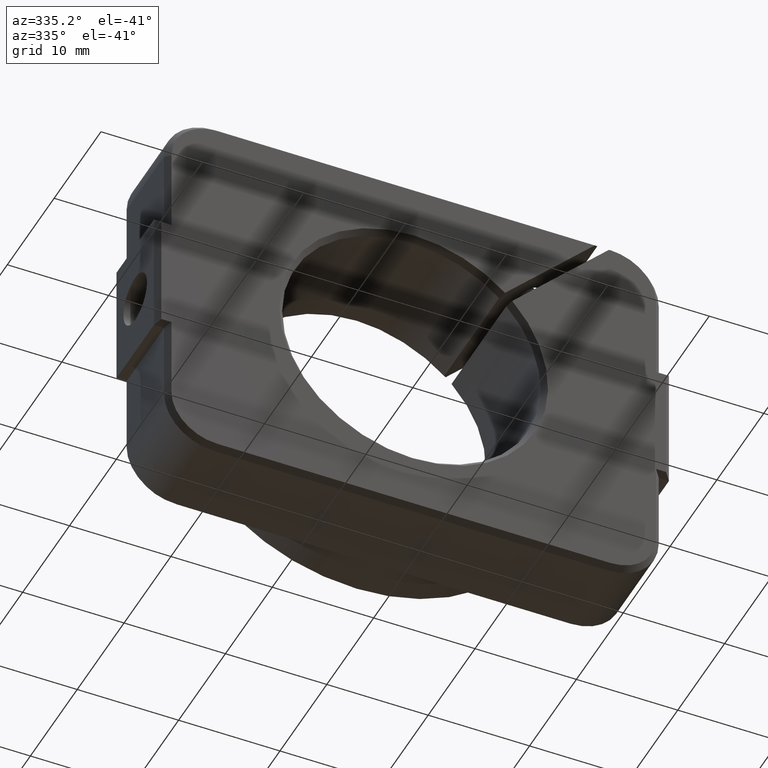
[diagram: clean part render]
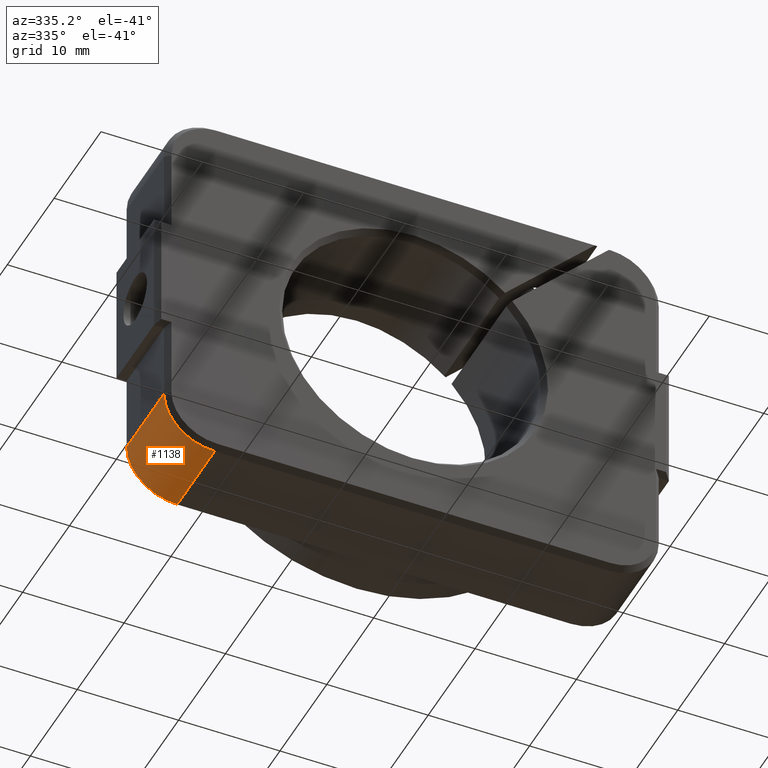
[diagram: same view with one face highlighted and labeled with its STEP entity id]
A machine part, auxiliary view. The second image highlights one B-rep face of the part: STEP entity #1138.
In plain terms, the highlighted cylindrical surface (partial cylindrical patch) has radius 5 mm, axis along (-0, -1, -0).
Its self-contained STEP definition (entity closure, byte-faithful):
#77 = LINE ( 'NONE', #554, #2280 ) ;
#210 = AXIS2_PLACEMENT_3D ( 'NONE', #2046, #751, #739 ) ;
#240 = CYLINDRICAL_SURFACE ( 'NONE', #1791, 5.000000000000004400 ) ;
#356 = CIRCLE ( 'NONE', #2605, 5.000000000000004400 ) ;
#521 = DIRECTION ( 'NONE',  ( 0.0000000000000000000, -1.000000000000000000, 0.0000000000000000000 ) ) ;
#536 = VERTEX_POINT ( 'NONE', #2463 ) ;
#554 = CARTESIAN_POINT ( 'NONE',  ( -21.98378581280264000, 8.546217940882606000, 31.75000000000001400 ) ) ;
#610 = EDGE_CURVE ( 'NONE', #2768, #1998, #77, .T. ) ;
#659 = FACE_OUTER_BOUND ( 'NONE', #2517, .T. ) ;
#671 = EDGE_CURVE ( 'NONE', #692, #536, #2808, .T. ) ;
#683 = EDGE_CURVE ( 'NONE', #692, #2768, #356, .T. ) ;
#692 = VERTEX_POINT ( 'NONE', #2697 ) ;
#739 = DIRECTION ( 'NONE',  ( 0.0000000000000000000, 0.0000000000000000000, 1.000000000000000000 ) ) ;
#751 = DIRECTION ( 'NONE',  ( -0.0000000000000000000, 1.000000000000000000, -0.0000000000000000000 ) ) ;
#862 = CARTESIAN_POINT ( 'NONE',  ( -21.98378581280264000, 8.546217940882606000, 36.75000000000001400 ) ) ;
#930 = DIRECTION ( 'NONE',  ( 0.0000000000000000000, 0.0000000000000000000, 1.000000000000000000 ) ) ;
#1036 = CARTESIAN_POINT ( 'NONE',  ( -21.98378581280264000, -3.653782059117393700, 31.75000000000001400 ) ) ;
#1106 = DIRECTION ( 'NONE',  ( 0.0000000000000000000, 0.0000000000000000000, -1.000000000000000000 ) ) ;
#1138 = ADVANCED_FACE ( 'NONE', ( #659 ), #240, .T. ) ;
#1743 = DIRECTION ( 'NONE',  ( -0.0000000000000000000, -1.000000000000000000, -0.0000000000000000000 ) ) ;
#1791 = AXIS2_PLACEMENT_3D ( 'NONE', #862, #1743, #1106 ) ;
#1808 = CARTESIAN_POINT ( 'NONE',  ( -26.98378581280263700, 8.546217940882606000, 36.75000000000001400 ) ) ;
#1832 = DIRECTION ( 'NONE',  ( -0.0000000000000000000, -1.000000000000000000, -0.0000000000000000000 ) ) ;
#1877 = ORIENTED_EDGE ( 'NONE', *, *, #683, .T. ) ;
#1927 = ORIENTED_EDGE ( 'NONE', *, *, #671, .F. ) ;
#1998 = VERTEX_POINT ( 'NONE', #1036 ) ;
#2046 = CARTESIAN_POINT ( 'NONE',  ( -21.98378581280264000, -3.653782059117393700, 36.75000000000001400 ) ) ;
#2102 = DIRECTION ( 'NONE',  ( -0.0000000000000000000, -1.000000000000000000, -0.0000000000000000000 ) ) ;
#2244 = CARTESIAN_POINT ( 'NONE',  ( -21.98378581280264000, 4.346217940882606700, 31.75000000000001400 ) ) ;
#2280 = VECTOR ( 'NONE', #2102, 1000.000000000000000 ) ;
#2463 = CARTESIAN_POINT ( 'NONE',  ( -26.98378581280263700, -3.653782059117393700, 36.75000000000001400 ) ) ;
#2517 = EDGE_LOOP ( 'NONE', ( #2707, #2586, #1927, #1877 ) ) ;
#2586 = ORIENTED_EDGE ( 'NONE', *, *, #2714, .T. ) ;
#2605 = AXIS2_PLACEMENT_3D ( 'NONE', #2674, #521, #930 ) ;
#2674 = CARTESIAN_POINT ( 'NONE',  ( -21.98378581280264000, 4.346217940882606700, 36.75000000000001400 ) ) ;
#2697 = CARTESIAN_POINT ( 'NONE',  ( -26.98378581280263700, 4.346217940882606700, 36.75000000000001400 ) ) ;
#2707 = ORIENTED_EDGE ( 'NONE', *, *, #610, .T. ) ;
#2714 = EDGE_CURVE ( 'NONE', #1998, #536, #2726, .T. ) ;
#2726 = CIRCLE ( 'NONE', #210, 5.000000000000004400 ) ;
#2768 = VERTEX_POINT ( 'NONE', #2244 ) ;
#2777 = VECTOR ( 'NONE', #1832, 1000.000000000000000 ) ;
#2808 = LINE ( 'NONE', #1808, #2777 ) ;